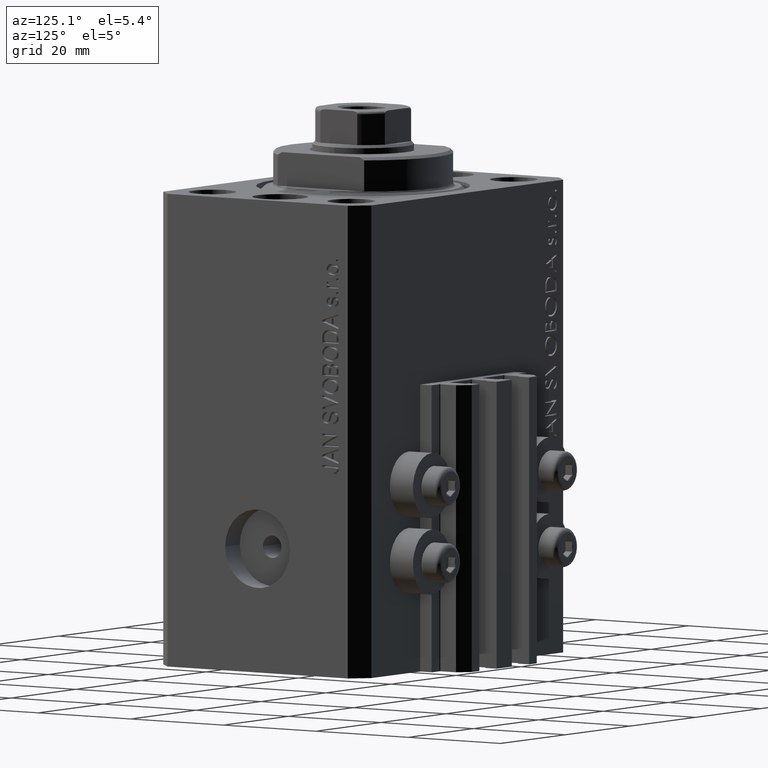
[diagram: clean part render]
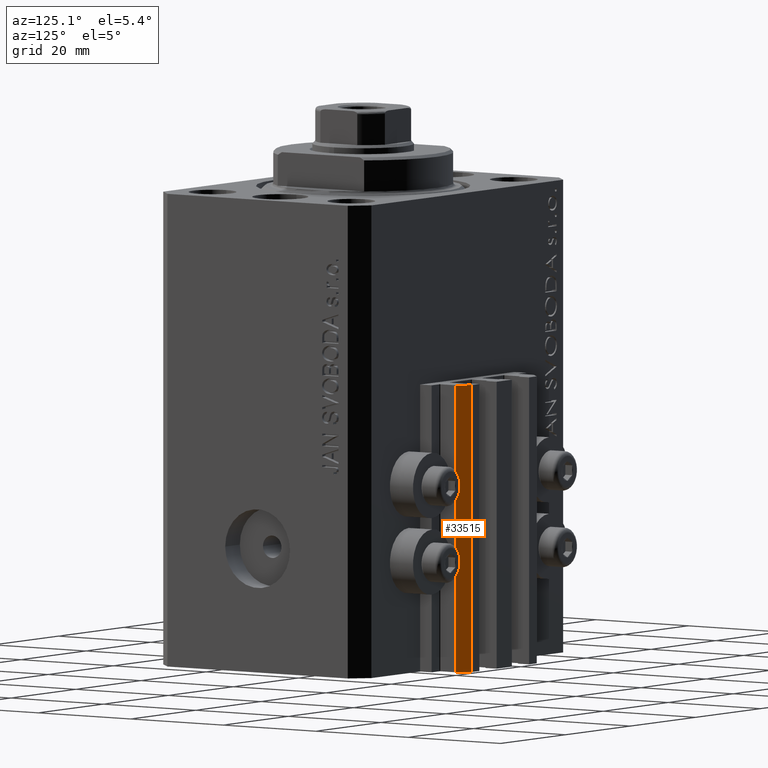
[diagram: same view with one face highlighted and labeled with its STEP entity id]
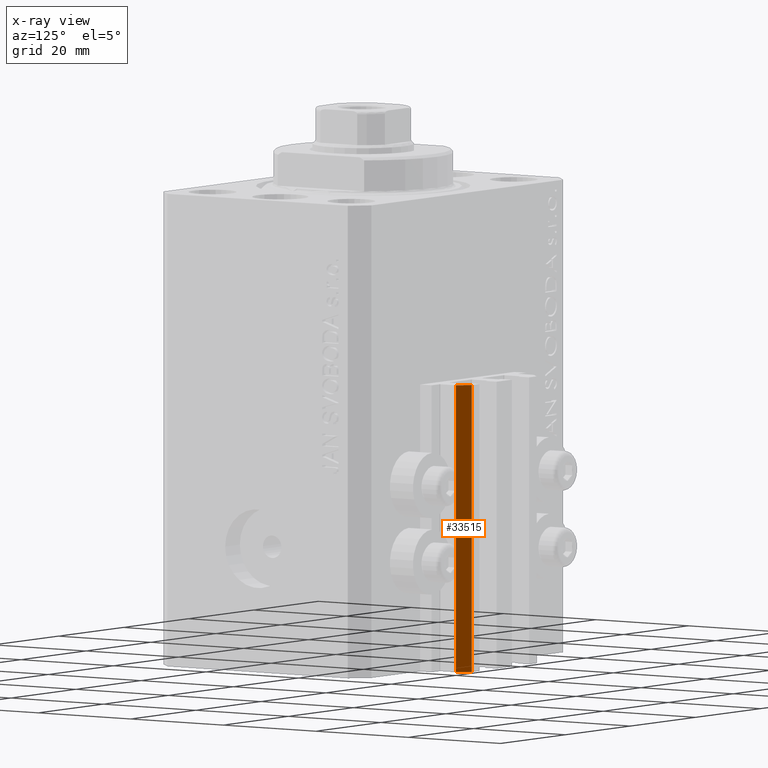
[diagram: x-ray of the same camera — body ghosted, the highlighted face saturated]
A machine part, auxiliary view. The second image highlights one B-rep face of the part: STEP entity #33515.
The next image is the same camera in x-ray: the body ghosted, the highlighted face saturated — about 0% of this face is hidden behind the body in this view.
In plain terms, the highlighted planar face has unit normal (0.7071, 0.7071, 0).
Its self-contained STEP definition (entity closure, byte-faithful):
#2374 = ORIENTED_EDGE ( 'NONE', *, *, #22591, .F. ) ;
#5397 = EDGE_LOOP ( 'NONE', ( #41497, #2374, #32665, #7254 ) ) ;
#7254 = ORIENTED_EDGE ( 'NONE', *, *, #42941, .T. ) ;
#8436 = FACE_OUTER_BOUND ( 'NONE', #5397, .T. ) ;
#8956 = CARTESIAN_POINT ( 'NONE',  ( 12.00000000000000178, 28.49999999999950973, -84.00000000000000000 ) ) ;
#10053 = DIRECTION ( 'NONE',  ( 0.000000000000000000, 0.000000000000000000, 1.000000000000000000 ) ) ;
#16062 = PLANE ( 'NONE',  #45146 ) ;
#16973 = LINE ( 'NONE', #31520, #46101 ) ;
#20850 = LINE ( 'NONE', #28466, #39148 ) ;
#21074 = DIRECTION ( 'NONE',  ( -0.7071067811865507924, 0.7071067811865441310, 0.000000000000000000 ) ) ;
#22591 = EDGE_CURVE ( 'NONE', #44558, #41389, #39332, .T. ) ;
#25500 = DIRECTION ( 'NONE',  ( -0.7071067811865507924, 0.7071067811865441310, 0.000000000000000000 ) ) ;
#27036 = DIRECTION ( 'NONE',  ( -0.7071067811865507924, 0.7071067811865441310, 0.000000000000000000 ) ) ;
#28466 = CARTESIAN_POINT ( 'NONE',  ( 12.00000000000000178, 28.49999999999950973, -84.00000000000000000 ) ) ;
#29329 = CARTESIAN_POINT ( 'NONE',  ( 9.999999999999994671, 30.49999999999949551, -33.00000000000000000 ) ) ;
#30145 = CARTESIAN_POINT ( 'NONE',  ( 12.00000000000000178, 28.49999999999950973, -84.00000000000000000 ) ) ;
#31520 = CARTESIAN_POINT ( 'NONE',  ( 9.999999999999994671, 30.49999999999949551, -84.00000000000000000 ) ) ;
#31563 = VERTEX_POINT ( 'NONE', #29329 ) ;
#31710 = CARTESIAN_POINT ( 'NONE',  ( 12.00000000000000178, 28.49999999999950973, -84.00000000000000000 ) ) ;
#31939 = VECTOR ( 'NONE', #42912, 1000.000000000000000 ) ;
#32665 = ORIENTED_EDGE ( 'NONE', *, *, #38037, .T. ) ;
#33515 = ADVANCED_FACE ( 'NONE', ( #8436 ), #16062, .T. ) ;
#36460 = LINE ( 'NONE', #39562, #37614 ) ;
#37466 = EDGE_CURVE ( 'NONE', #41389, #31563, #36460, .T. ) ;
#37614 = VECTOR ( 'NONE', #25500, 1000.000000000000000 ) ;
#38037 = EDGE_CURVE ( 'NONE', #44558, #41267, #20850, .T. ) ;
#39148 = VECTOR ( 'NONE', #21074, 1000.000000000000000 ) ;
#39332 = LINE ( 'NONE', #31710, #31939 ) ;
#39562 = CARTESIAN_POINT ( 'NONE',  ( 12.00000000000000178, 28.49999999999950973, -33.00000000000000000 ) ) ;
#41267 = VERTEX_POINT ( 'NONE', #45996 ) ;
#41389 = VERTEX_POINT ( 'NONE', #44317 ) ;
#41497 = ORIENTED_EDGE ( 'NONE', *, *, #37466, .F. ) ;
#42912 = DIRECTION ( 'NONE',  ( 0.000000000000000000, 0.000000000000000000, 1.000000000000000000 ) ) ;
#42941 = EDGE_CURVE ( 'NONE', #41267, #31563, #16973, .T. ) ;
#44317 = CARTESIAN_POINT ( 'NONE',  ( 12.00000000000000178, 28.49999999999950973, -33.00000000000000000 ) ) ;
#44558 = VERTEX_POINT ( 'NONE', #8956 ) ;
#45146 = AXIS2_PLACEMENT_3D ( 'NONE', #30145, #45160, #27036 ) ;
#45160 = DIRECTION ( 'NONE',  ( 0.7071067811865442421, 0.7071067811865509034, -0.000000000000000000 ) ) ;
#45996 = CARTESIAN_POINT ( 'NONE',  ( 9.999999999999994671, 30.49999999999949551, -84.00000000000000000 ) ) ;
#46101 = VECTOR ( 'NONE', #10053, 1000.000000000000000 ) ;